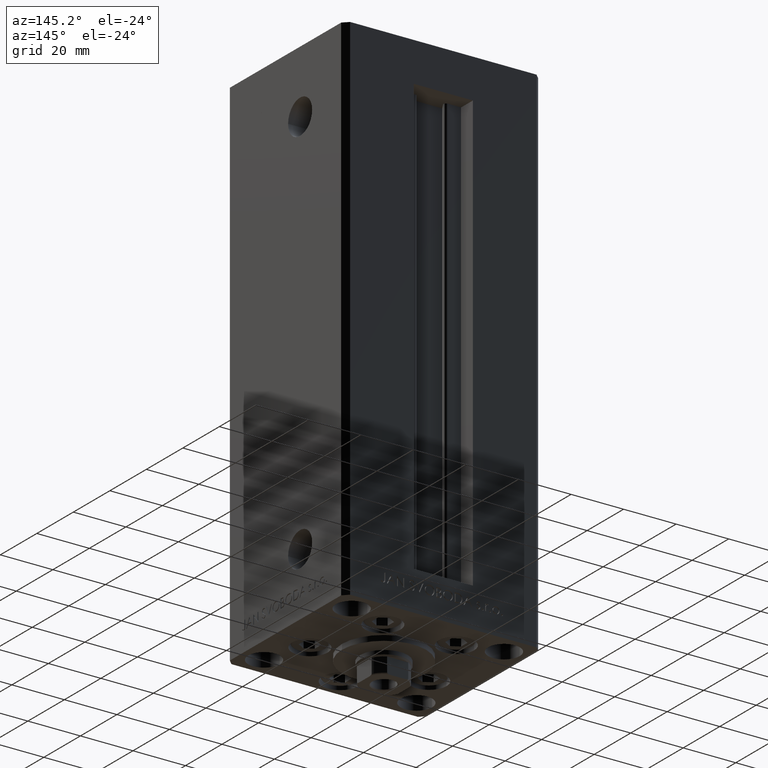
[diagram: clean part render]
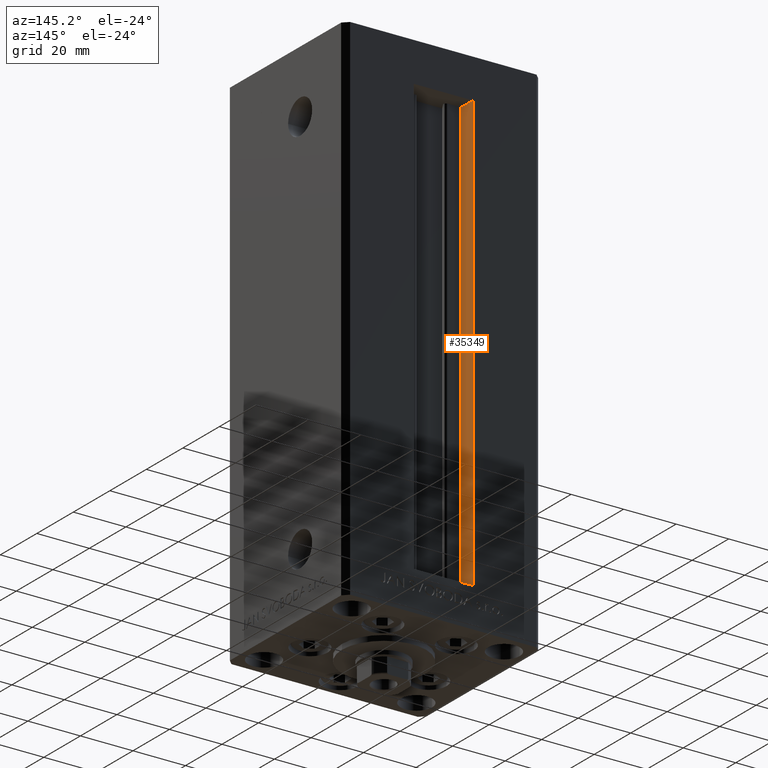
[diagram: same view with one face highlighted and labeled with its STEP entity id]
A machine part, auxiliary view. The second image highlights one B-rep face of the part: STEP entity #35349.
In plain terms, the highlighted planar face has unit normal (-1, 0, 0).
Its self-contained STEP definition (entity closure, byte-faithful):
#593 = ORIENTED_EDGE ( 'NONE', *, *, #35635, .T. ) ;
#1204 = EDGE_LOOP ( 'NONE', ( #26338, #29978, #593, #3298 ) ) ;
#1638 = CARTESIAN_POINT ( 'NONE',  ( -11.25000000000000178, 25.99999999999999289, 0.000000000000000000 ) ) ;
#3298 = ORIENTED_EDGE ( 'NONE', *, *, #26771, .F. ) ;
#3402 = EDGE_CURVE ( 'NONE', #25682, #20475, #33237, .T. ) ;
#6509 = DIRECTION ( 'NONE',  ( -0.000000000000000000, -0.000000000000000000, 1.000000000000000000 ) ) ;
#7062 = DIRECTION ( 'NONE',  ( -0.000000000000000000, -1.000000000000000000, -0.000000000000000000 ) ) ;
#7071 = DIRECTION ( 'NONE',  ( 0.000000000000000000, 0.000000000000000000, 1.000000000000000000 ) ) ;
#8024 = DIRECTION ( 'NONE',  ( 0.000000000000000000, 1.000000000000000000, 0.000000000000000000 ) ) ;
#10028 = VECTOR ( 'NONE', #7062, 1000.000000000000000 ) ;
#10546 = CARTESIAN_POINT ( 'NONE',  ( -11.25000000000000178, 25.99999999999999289, 0.000000000000000000 ) ) ;
#14390 = VECTOR ( 'NONE', #46781, 1000.000000000000000 ) ;
#14541 = FACE_OUTER_BOUND ( 'NONE', #1204, .T. ) ;
#15875 = LINE ( 'NONE', #1638, #14390 ) ;
#20475 = VERTEX_POINT ( 'NONE', #35482 ) ;
#22971 = LINE ( 'NONE', #35173, #36537 ) ;
#25682 = VERTEX_POINT ( 'NONE', #48328 ) ;
#26338 = ORIENTED_EDGE ( 'NONE', *, *, #31392, .F. ) ;
#26771 = EDGE_CURVE ( 'NONE', #32167, #35406, #22971, .T. ) ;
#28047 = AXIS2_PLACEMENT_3D ( 'NONE', #32750, #40970, #7071 ) ;
#29978 = ORIENTED_EDGE ( 'NONE', *, *, #3402, .F. ) ;
#31392 = EDGE_CURVE ( 'NONE', #20475, #32167, #15875, .T. ) ;
#32167 = VERTEX_POINT ( 'NONE', #42669 ) ;
#32750 = CARTESIAN_POINT ( 'NONE',  ( -11.25000000000000178, 25.99999999999999289, 0.000000000000000000 ) ) ;
#33237 = LINE ( 'NONE', #10546, #10028 ) ;
#33438 = CARTESIAN_POINT ( 'NONE',  ( -11.25000000000000178, 32.49999999999999289, 0.000000000000000000 ) ) ;
#35173 = CARTESIAN_POINT ( 'NONE',  ( -11.25000000000000178, 0.000000000000000000, 166.0000000000000000 ) ) ;
#35349 = ADVANCED_FACE ( 'NONE', ( #14541 ), #48197, .F. ) ;
#35406 = VERTEX_POINT ( 'NONE', #48694 ) ;
#35482 = CARTESIAN_POINT ( 'NONE',  ( -11.25000000000000178, 25.99999999999999289, 0.000000000000000000 ) ) ;
#35635 = EDGE_CURVE ( 'NONE', #25682, #35406, #40665, .T. ) ;
#36537 = VECTOR ( 'NONE', #8024, 1000.000000000000000 ) ;
#38436 = VECTOR ( 'NONE', #6509, 1000.000000000000000 ) ;
#40665 = LINE ( 'NONE', #33438, #38436 ) ;
#40970 = DIRECTION ( 'NONE',  ( -1.000000000000000000, 0.000000000000000000, 0.000000000000000000 ) ) ;
#42669 = CARTESIAN_POINT ( 'NONE',  ( -11.25000000000000178, 25.99999999999999289, 166.0000000000000000 ) ) ;
#46781 = DIRECTION ( 'NONE',  ( -0.000000000000000000, -0.000000000000000000, 1.000000000000000000 ) ) ;
#48197 = PLANE ( 'NONE',  #28047 ) ;
#48328 = CARTESIAN_POINT ( 'NONE',  ( -11.25000000000000178, 32.49999999999999289, 0.000000000000000000 ) ) ;
#48694 = CARTESIAN_POINT ( 'NONE',  ( -11.25000000000000178, 32.49999999999999289, 166.0000000000000000 ) ) ;